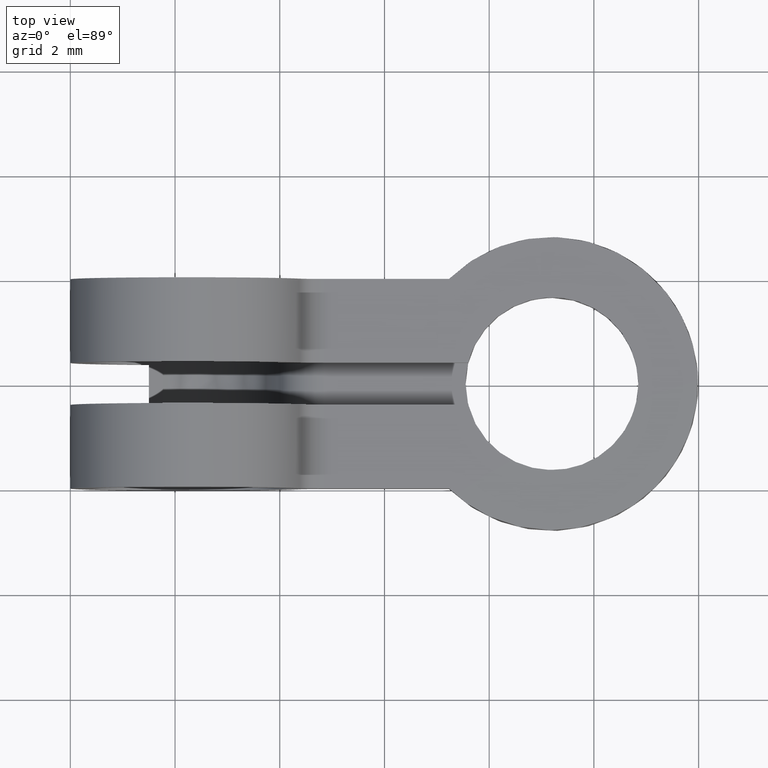
[diagram: clean part render]
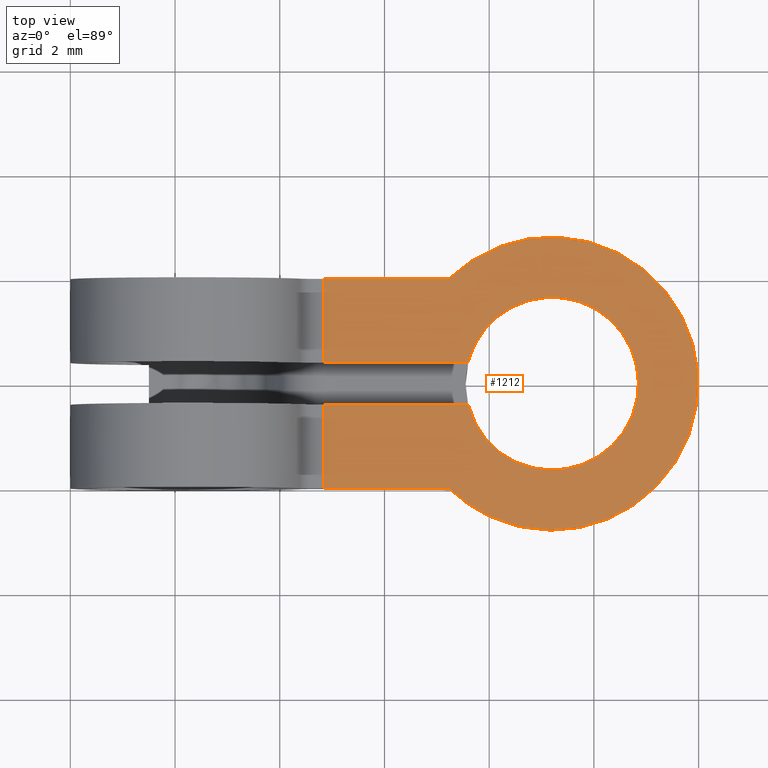
[diagram: same view with one face highlighted and labeled with its STEP entity id]
A machine part, top view. The second image highlights one B-rep face of the part: STEP entity #1212.
In plain terms, the highlighted face is a freeform B-spline surface patch.
Its self-contained STEP definition (entity closure, byte-faithful):
#289=CARTESIAN_POINT('',(5.599218940641690,0.400000000000006,0.404999999999988));
#290=VERTEX_POINT('',#289);
#296=CARTESIAN_POINT('',(2.846820170901330,0.399999999999956,0.405000000000000));
#297=VERTEX_POINT('',#296);
#298=CARTESIAN_POINT('',(2.846820170901330,0.399999999999956,0.405000000000000));
#299=CARTESIAN_POINT('',(5.599218940641690,0.400000000000006,0.404999999999988));
#300=QUASI_UNIFORM_CURVE('',1,(#298,#299),.UNSPECIFIED.,.F.,.U.);
#301=EDGE_CURVE('',#297,#290,#300,.T.);
#364=CARTESIAN_POINT('',(2.846820170901330,-0.400000000000178,0.405000000000000));
#365=VERTEX_POINT('',#364);
#379=CARTESIAN_POINT('',(5.599218940641740,-0.400000000000205,0.404999999999988));
#380=VERTEX_POINT('',#379);
#381=CARTESIAN_POINT('',(5.599218940641740,-0.400000000000205,0.404999999999988));
#382=CARTESIAN_POINT('',(2.846820170901330,-0.400000000000178,0.405000000000000));
#383=QUASI_UNIFORM_CURVE('',1,(#381,#382),.UNSPECIFIED.,.F.,.U.);
#384=EDGE_CURVE('',#380,#365,#383,.T.);
#509=CARTESIAN_POINT('',(5.599218940641739,-0.400000000000205,0.404999999999988));
#510=CARTESIAN_POINT('',(5.953016754140565,-1.815882096727612,0.404999999999989));
#511=CARTESIAN_POINT('',(7.401508377070278,-1.637649038704711,0.404999999999988));
#512=CARTESIAN_POINT('',(8.849999999999900,-1.459415980681821,0.404999999999989));
#513=CARTESIAN_POINT('',(8.849999999999900,0.0,0.404999999999988));
#514=CARTESIAN_POINT('',(8.849999999999900,1.459415980682002,0.404999999999989));
#515=CARTESIAN_POINT('',(7.401508377070076,1.637649038704736,0.404999999999988));
#516=CARTESIAN_POINT('',(5.953016754140339,1.815882096727458,0.404999999999989));
#517=CARTESIAN_POINT('',(5.599218940641690,0.400000000000006,0.404999999999988));
#525=(BOUNDED_CURVE()B_SPLINE_CURVE(2,(#509,#510,#511,#512,#513,#514,#515,#516,#517),.UNSPECIFIED.,.F.,.U.)B_SPLINE_CURVE_WITH_KNOTS((3,2,2,2,3),(0.0,0.250000000000000,0.500000000000000,0.750000000000000,1.0),.UNSPECIFIED.)CURVE()GEOMETRIC_REPRESENTATION_ITEM()RATIONAL_B_SPLINE_CURVE((1.0,0.749041483875727,1.0,0.749041483875727,1.0,0.749041483875727,1.0,0.749041483875727,1.0))REPRESENTATION_ITEM(''));
#526=EDGE_CURVE('',#380,#290,#525,.T.);
#815=CARTESIAN_POINT('',(5.230408205773159,1.999999999999800,0.404999999999988));
#816=VERTEX_POINT('',#815);
#817=CARTESIAN_POINT('',(5.230408205773370,-2.0,0.404999999999988));
#818=VERTEX_POINT('',#817);
#819=CARTESIAN_POINT('',(5.230408205773157,1.999999999999803,0.404999999999988));
#820=CARTESIAN_POINT('',(7.216847893402465,3.946305455802357,0.404999999999988));
#821=CARTESIAN_POINT('',(9.176622337631223,1.973152727901280,0.404999999999988));
#822=CARTESIAN_POINT('',(11.136396781859979,2.046974E-013,0.404999999999988));
#823=CARTESIAN_POINT('',(9.176622337631427,-1.973152727901074,0.404999999999988));
#824=CARTESIAN_POINT('',(7.216847893402873,-3.946305455802354,0.404999999999988));
#825=CARTESIAN_POINT('',(5.230408205773364,-2.000000000000006,0.404999999999988));
#833=(BOUNDED_CURVE()B_SPLINE_CURVE(2,(#819,#820,#821,#822,#823,#824,#825),.UNSPECIFIED.,.F.,.U.)B_SPLINE_CURVE_WITH_KNOTS((3,2,2,3),(0.0,0.333333333333333,0.666666666666667,1.0),.UNSPECIFIED.)CURVE()GEOMETRIC_REPRESENTATION_ITEM()RATIONAL_B_SPLINE_CURVE((1.0,0.709507977725508,1.0,0.709507977725508,1.0,0.709507977725508,1.0))REPRESENTATION_ITEM(''));
#834=EDGE_CURVE('',#816,#818,#833,.T.);
#876=CARTESIAN_POINT('',(2.846820170901330,-2.0,0.405000000000000));
#877=VERTEX_POINT('',#876);
#878=CARTESIAN_POINT('',(2.846820170901330,-2.0,0.405000000000000));
#879=CARTESIAN_POINT('',(5.230408205773370,-2.0,0.404999999999988));
#880=QUASI_UNIFORM_CURVE('',1,(#878,#879),.UNSPECIFIED.,.F.,.U.);
#881=EDGE_CURVE('',#877,#818,#880,.T.);
#1027=CARTESIAN_POINT('',(2.846820170901330,1.999999999999780,0.405000000000000));
#1028=VERTEX_POINT('',#1027);
#1042=CARTESIAN_POINT('',(5.230408205773159,1.999999999999800,0.404999999999988));
#1043=CARTESIAN_POINT('',(2.846820170901330,1.999999999999780,0.405000000000000));
#1044=QUASI_UNIFORM_CURVE('',1,(#1042,#1043),.UNSPECIFIED.,.F.,.U.);
#1045=EDGE_CURVE('',#816,#1028,#1044,.T.);
#1070=CARTESIAN_POINT('',(2.846820170901330,-0.400000000000178,0.405000000000000));
#1071=CARTESIAN_POINT('',(2.846820170901330,-2.0,0.405000000000000));
#1072=QUASI_UNIFORM_CURVE('',1,(#1070,#1071),.UNSPECIFIED.,.F.,.U.);
#1073=EDGE_CURVE('',#365,#877,#1072,.T.);
#1193=CARTESIAN_POINT('',(10.346801617453290,-3.079648600602539,0.405000000000000));
#1194=CARTESIAN_POINT('',(2.490018170257883,-3.079648600602539,0.405000000000000));
#1195=CARTESIAN_POINT('',(10.346801617453290,3.079648624243817,0.405000000000000));
#1196=CARTESIAN_POINT('',(2.490018170257883,3.079648624243817,0.405000000000000));
#1197=B_SPLINE_SURFACE_WITH_KNOTS('',1,1,((#1193,#1195),(#1194,#1196)),.UNSPECIFIED.,.F.,.F.,.U.,(2,2),(2,2),(0.0,7.856783447195403),(0.0,6.159297224846356),.UNSPECIFIED.);
#1198=CARTESIAN_POINT('',(2.846820170901330,1.999999999999780,0.405000000000000));
#1199=CARTESIAN_POINT('',(2.846820170901330,0.399999999999956,0.405000000000000));
#1200=QUASI_UNIFORM_CURVE('',1,(#1198,#1199),.UNSPECIFIED.,.F.,.U.);
#1201=EDGE_CURVE('',#1028,#297,#1200,.T.);
#1202=ORIENTED_EDGE('',*,*,#1201,.T.);
#1203=ORIENTED_EDGE('',*,*,#301,.T.);
#1204=ORIENTED_EDGE('',*,*,#526,.F.);
#1205=ORIENTED_EDGE('',*,*,#384,.T.);
#1206=ORIENTED_EDGE('',*,*,#1073,.T.);
#1207=ORIENTED_EDGE('',*,*,#881,.T.);
#1208=ORIENTED_EDGE('',*,*,#834,.F.);
#1209=ORIENTED_EDGE('',*,*,#1045,.T.);
#1210=EDGE_LOOP('',(#1202,#1203,#1204,#1205,#1206,#1207,#1208,#1209));
#1211=FACE_OUTER_BOUND('',#1210,.T.);
#1212=ADVANCED_FACE('',(#1211),#1197,.F.);